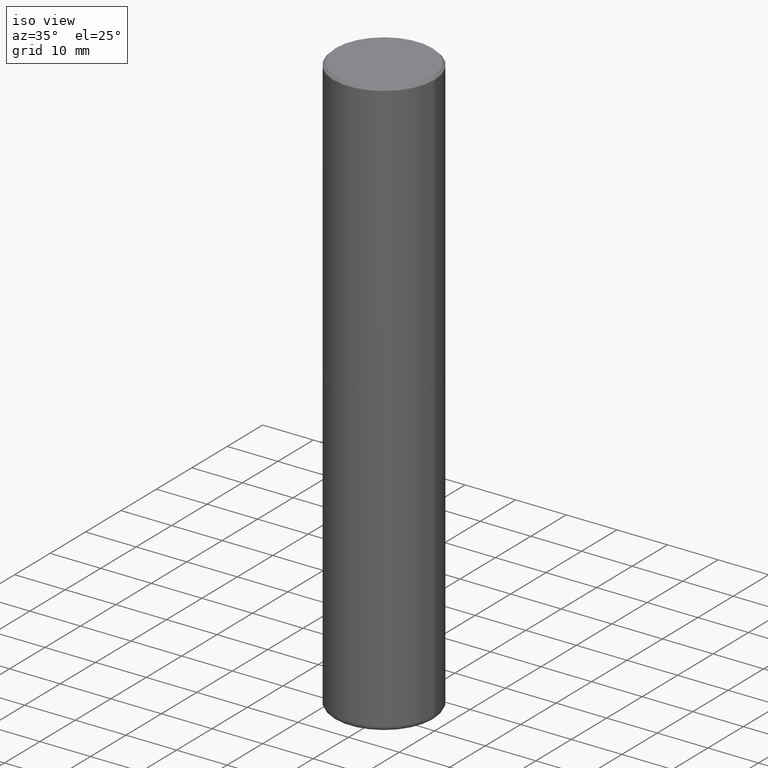
[diagram: clean part render]
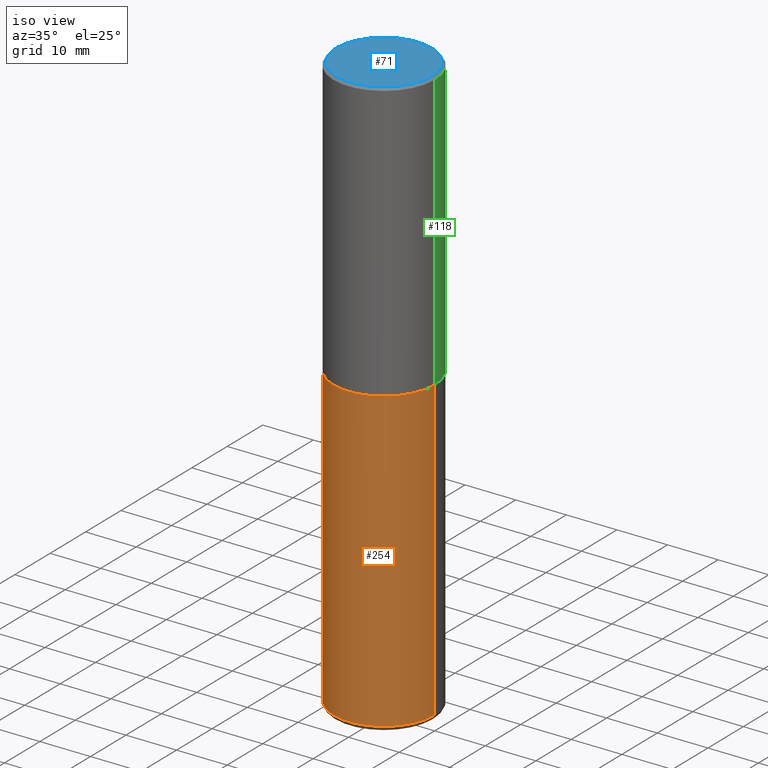
[diagram: same view with three faces highlighted in distinct colors, each labeled with its STEP entity id]
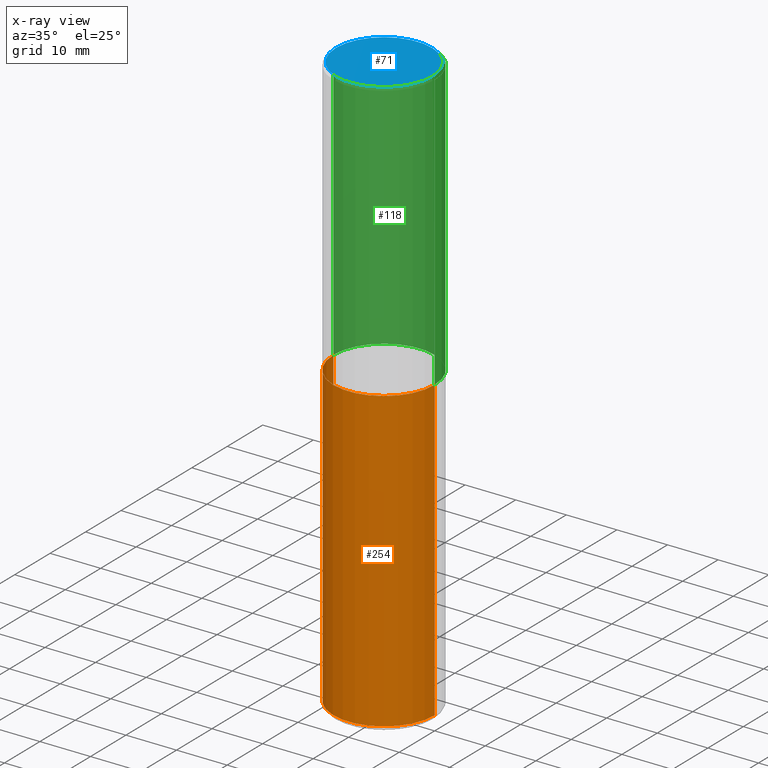
[diagram: x-ray of the same camera — body ghosted, the three highlighted faces saturated]
A machine part, iso view with three faces highlighted in distinct colors.
The next image is the same camera in x-ray (body ghosted, the three faces saturated) — at least one of them is partly hidden behind the body in this view.
Their STEP definitions:

[orange] entity #254 — the highlighted cylindrical surface (partial cylindrical patch) has radius 10 mm, axis along (-0, 0, 1).
#12 = EDGE_LOOP ( 'NONE', ( #110, #48, #235, #22 ) ) ;
#14 = VERTEX_POINT ( 'NONE', #238 ) ;
#22 = ORIENTED_EDGE ( 'NONE', *, *, #274, .F. ) ;
#25 = DIRECTION ( 'NONE',  ( -2.445468806185136597E-29, 3.491481338843145583E-15, 1.000000000000000000 ) ) ;
#29 = AXIS2_PLACEMENT_3D ( 'NONE', #225, #74, #321 ) ;
#34 = CARTESIAN_POINT ( 'NONE',  ( 1.097575309592012950E-28, -1.567046654499580152E-14, -4.488199999999999079 ) ) ;
#39 = LINE ( 'NONE', #262, #151 ) ;
#48 = ORIENTED_EDGE ( 'NONE', *, *, #186, .T. ) ;
#50 = AXIS2_PLACEMENT_3D ( 'NONE', #34, #150, #332 ) ;
#74 = DIRECTION ( 'NONE',  ( -2.445468806185136597E-29, 3.491481338843145583E-15, 1.000000000000000000 ) ) ;
#87 = CARTESIAN_POINT ( 'NONE',  ( 5.295418152913293224E-29, -7.560453691130945845E-15, -2.165399999999999547 ) ) ;
#97 = CARTESIAN_POINT ( 'NONE',  ( 0.3937000000000000499, -1.030964609733602906E-14, -2.165399999999999547 ) ) ;
#99 = CARTESIAN_POINT ( 'NONE',  ( -0.3937000000000000499, -8.818053367375859687E-15, -2.165399999999999547 ) ) ;
#104 = CYLINDRICAL_SURFACE ( 'NONE', #29, 0.3937000000000000499 ) ;
#110 = ORIENTED_EDGE ( 'NONE', *, *, #208, .F. ) ;
#150 = DIRECTION ( 'NONE',  ( -2.445468806185136597E-29, 3.491481338843145583E-15, 1.000000000000000000 ) ) ;
#151 = VECTOR ( 'NONE', #396, 39.37007874015748143 ) ;
#161 = VERTEX_POINT ( 'NONE', #256 ) ;
#186 = EDGE_CURVE ( 'NONE', #161, #14, #234, .T. ) ;
#208 = EDGE_CURVE ( 'NONE', #161, #383, #39, .T. ) ;
#219 = CARTESIAN_POINT ( 'NONE',  ( 0.3937000000000000499, -2.749192406205083217E-15, 1.919750796630860172E-29 ) ) ;
#225 = CARTESIAN_POINT ( 'NONE',  ( 0.000000000000000000, 0.000000000000000000, 0.000000000000000000 ) ) ;
#234 = CIRCLE ( 'NONE', #50, 0.3937000000000000499 ) ;
#235 = ORIENTED_EDGE ( 'NONE', *, *, #398, .T. ) ;
#238 = CARTESIAN_POINT ( 'NONE',  ( 0.3937000000000001054, -1.841965895120088790E-14, -4.488199999999999079 ) ) ;
#254 = ADVANCED_FACE ( 'NONE', ( #297 ), #104, .T. ) ;
#256 = CARTESIAN_POINT ( 'NONE',  ( -0.3937000000000001054, -1.287305979430828910E-14, -4.488199999999999079 ) ) ;
#262 = CARTESIAN_POINT ( 'NONE',  ( -0.3937000000000000499, 2.797406750687514786E-15, -1.936584745033356735E-29 ) ) ;
#274 = EDGE_CURVE ( 'NONE', #383, #403, #359, .T. ) ;
#289 = LINE ( 'NONE', #219, #299 ) ;
#291 = AXIS2_PLACEMENT_3D ( 'NONE', #87, #25, #345 ) ;
#297 = FACE_OUTER_BOUND ( 'NONE', #12, .T. ) ;
#299 = VECTOR ( 'NONE', #391, 39.37007874015748143 ) ;
#321 = DIRECTION ( 'NONE',  ( 1.000000000000000000, -6.982962677686265922E-15, 4.876176775795935793E-29 ) ) ;
#332 = DIRECTION ( 'NONE',  ( 1.000000000000000000, -6.982962677686262766E-15, 0.000000000000000000 ) ) ;
#345 = DIRECTION ( 'NONE',  ( 1.000000000000000000, -6.982962677686265133E-15, 0.000000000000000000 ) ) ;
#359 = CIRCLE ( 'NONE', #291, 0.3937000000000000499 ) ;
#383 = VERTEX_POINT ( 'NONE', #99 ) ;
#391 = DIRECTION ( 'NONE',  ( -2.445468806185136877E-29, 3.491481338843145188E-15, 1.000000000000000000 ) ) ;
#396 = DIRECTION ( 'NONE',  ( -2.445468806185136877E-29, 3.491481338843145188E-15, 1.000000000000000000 ) ) ;
#398 = EDGE_CURVE ( 'NONE', #14, #403, #289, .T. ) ;
#403 = VERTEX_POINT ( 'NONE', #97 ) ;

[blue] entity #71 — the highlighted planar face has unit normal (0, -0, -1).
#21 = DIRECTION ( 'NONE',  ( 1.000000000000000000, -6.982962677686266711E-15, 4.877734241229876808E-29 ) ) ;
#32 = PLANE ( 'NONE',  #409 ) ;
#37 = DIRECTION ( 'NONE',  ( 1.000000000000000000, -6.982962677686266711E-15, 4.877734241229876808E-29 ) ) ;
#43 = VERTEX_POINT ( 'NONE', #88 ) ;
#62 = EDGE_CURVE ( 'NONE', #43, #167, #395, .T. ) ;
#71 = ADVANCED_FACE ( 'NONE', ( #328 ), #32, .F. ) ;
#72 = CARTESIAN_POINT ( 'NONE',  ( 2.609533152651356620E-15, 0.3736999999999999211, -1.191650995338022328E-15 ) ) ;
#88 = CARTESIAN_POINT ( 'NONE',  ( 0.3736999999999999211, -2.667287895133367964E-15, 2.262311619753402158E-16 ) ) ;
#100 = DIRECTION ( 'NONE',  ( -1.000000000000000000, 6.982962677686265922E-15, -4.876176775795935793E-29 ) ) ;
#105 = ORIENTED_EDGE ( 'NONE', *, *, #407, .T. ) ;
#167 = VERTEX_POINT ( 'NONE', #294 ) ;
#176 = CIRCLE ( 'NONE', #252, 0.3736999999999999211 ) ;
#191 = CARTESIAN_POINT ( 'NONE',  ( -5.532412495976664402E-45, 7.898818803016371119E-31, 2.262311619753217762E-16 ) ) ;
#252 = AXIS2_PLACEMENT_3D ( 'NONE', #191, #330, #37 ) ;
#294 = CARTESIAN_POINT ( 'NONE',  ( -0.3736999999999999211, 2.644447966039789453E-15, 2.262311619753034352E-16 ) ) ;
#302 = DIRECTION ( 'NONE',  ( -2.445468806185136597E-29, 3.491481338843145583E-15, 1.000000000000000000 ) ) ;
#305 = EDGE_LOOP ( 'NONE', ( #105, #406 ) ) ;
#317 = CARTESIAN_POINT ( 'NONE',  ( -5.532412495976664402E-45, 7.898818803016371119E-31, 2.262311619753217762E-16 ) ) ;
#328 = FACE_OUTER_BOUND ( 'NONE', #305, .T. ) ;
#330 = DIRECTION ( 'NONE',  ( -2.445468806185136597E-29, 3.491481338843145583E-15, 1.000000000000000000 ) ) ;
#372 = AXIS2_PLACEMENT_3D ( 'NONE', #317, #302, #21 ) ;
#394 = DIRECTION ( 'NONE',  ( 2.438088387897960049E-29, -3.491481338843145188E-15, -1.000000000000000000 ) ) ;
#395 = CIRCLE ( 'NONE', #372, 0.3736999999999999211 ) ;
#406 = ORIENTED_EDGE ( 'NONE', *, *, #62, .T. ) ;
#407 = EDGE_CURVE ( 'NONE', #167, #43, #176, .T. ) ;
#409 = AXIS2_PLACEMENT_3D ( 'NONE', #72, #394, #100 ) ;

[green] entity #118 — the highlighted cylindrical surface (partial cylindrical patch) has radius 10 mm, axis along (-0, 0, 1).
#8 = CIRCLE ( 'NONE', #145, 0.3937000000000001054 ) ;
#18 = DIRECTION ( 'NONE',  ( -2.445468806185136597E-29, 3.491481338843145583E-15, 1.000000000000000000 ) ) ;
#19 = EDGE_CURVE ( 'NONE', #307, #52, #68, .T. ) ;
#23 = AXIS2_PLACEMENT_3D ( 'NONE', #102, #153, #292 ) ;
#27 = CARTESIAN_POINT ( 'NONE',  ( -0.3937000000000002164, 2.797406750687515970E-15, -1.936584745033357576E-29 ) ) ;
#52 = VERTEX_POINT ( 'NONE', #172 ) ;
#55 = VERTEX_POINT ( 'NONE', #162 ) ;
#66 = EDGE_CURVE ( 'NONE', #307, #402, #232, .T. ) ;
#67 = DIRECTION ( 'NONE',  ( -2.445468806185136877E-29, 3.491481338843145188E-15, 1.000000000000000000 ) ) ;
#68 = CIRCLE ( 'NONE', #342, 0.3937000000000002720 ) ;
#92 = DIRECTION ( 'NONE',  ( -2.445468806185136877E-29, 3.491481338843145188E-15, 1.000000000000000000 ) ) ;
#102 = CARTESIAN_POINT ( 'NONE',  ( 0.000000000000000000, 0.000000000000000000, 0.000000000000000000 ) ) ;
#109 = EDGE_LOOP ( 'NONE', ( #131, #135, #277, #170 ) ) ;
#118 = ADVANCED_FACE ( 'NONE', ( #187 ), #288, .T. ) ;
#131 = ORIENTED_EDGE ( 'NONE', *, *, #19, .T. ) ;
#134 = VECTOR ( 'NONE', #92, 39.37007874015748143 ) ;
#135 = ORIENTED_EDGE ( 'NONE', *, *, #418, .T. ) ;
#145 = AXIS2_PLACEMENT_3D ( 'NONE', #312, #18, #157 ) ;
#153 = DIRECTION ( 'NONE',  ( -2.445468806185136597E-29, 3.491481338843145583E-15, 1.000000000000000000 ) ) ;
#157 = DIRECTION ( 'NONE',  ( 1.000000000000000000, -6.982962677686266711E-15, 0.000000000000000000 ) ) ;
#162 = CARTESIAN_POINT ( 'NONE',  ( -0.3937000000000001054, 2.679362779428220707E-15, -0.02000000000000008715 ) ) ;
#170 = ORIENTED_EDGE ( 'NONE', *, *, #66, .F. ) ;
#172 = CARTESIAN_POINT ( 'NONE',  ( -0.3937000000000002720, -1.015989167596965718E-15, -2.164399999999999658 ) ) ;
#187 = FACE_OUTER_BOUND ( 'NONE', #109, .T. ) ;
#195 = DIRECTION ( 'NONE',  ( -2.445468806185136597E-29, 3.491481338843145583E-15, 1.000000000000000000 ) ) ;
#222 = LINE ( 'NONE', #27, #134 ) ;
#232 = LINE ( 'NONE', #306, #329 ) ;
#253 = EDGE_CURVE ( 'NONE', #402, #55, #8, .T. ) ;
#264 = DIRECTION ( 'NONE',  ( 1.000000000000000000, -6.982962677686269077E-15, 0.000000000000000000 ) ) ;
#277 = ORIENTED_EDGE ( 'NONE', *, *, #253, .F. ) ;
#288 = CYLINDRICAL_SURFACE ( 'NONE', #23, 0.3937000000000002164 ) ;
#292 = DIRECTION ( 'NONE',  ( 1.000000000000000000, -6.982962677686266711E-15, 4.876176775795935793E-29 ) ) ;
#306 = CARTESIAN_POINT ( 'NONE',  ( 0.3937000000000002164, -2.749192406205084794E-15, 1.919750796630861012E-29 ) ) ;
#307 = VERTEX_POINT ( 'NONE', #387 ) ;
#312 = CARTESIAN_POINT ( 'NONE',  ( 4.890937612370294178E-31, -6.982962677686321191E-17, -0.02000000000000008715 ) ) ;
#329 = VECTOR ( 'NONE', #67, 39.37007874015748143 ) ;
#342 = AXIS2_PLACEMENT_3D ( 'NONE', #377, #195, #264 ) ;
#362 = CARTESIAN_POINT ( 'NONE',  ( 0.3937000000000001054, -2.770807688499516128E-15, -0.02000000000000008715 ) ) ;
#377 = CARTESIAN_POINT ( 'NONE',  ( 5.292972684107107621E-29, -7.556962209792102838E-15, -2.164399999999999658 ) ) ;
#387 = CARTESIAN_POINT ( 'NONE',  ( 0.3937000000000002720, -1.030615461599718763E-14, -2.164399999999999658 ) ) ;
#402 = VERTEX_POINT ( 'NONE', #362 ) ;
#418 = EDGE_CURVE ( 'NONE', #52, #55, #222, .T. ) ;